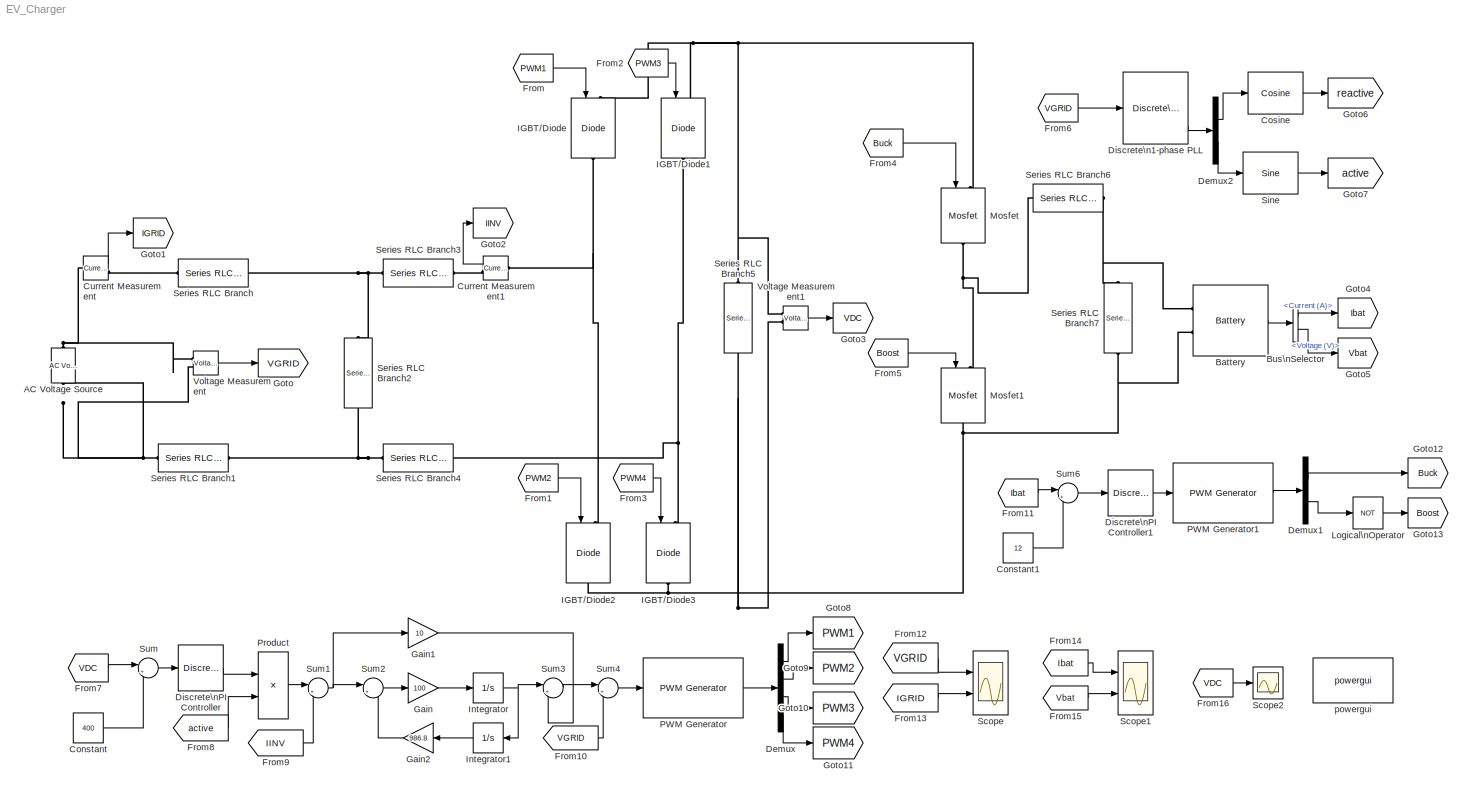
MODEL EV_Charger
KIND model
BLOCK [Reference] AC Voltage Source  REF=powerlib/Electrical\nSources/AC Voltage Source
  Amplitude = 325
  DialogController = POWERSYS.PowerSysDialog
  Frequency = 50
  FunctionWithSeparateData = off
  Measurements = None
  Phase = 0
  Ports = [0, 0, 0, 0, 0, 1, 1]
  RTWMemSecDataConstants = Inherit from model
  RTWMemSecDataInternal = Inherit from model
  RTWMemSecDataParameters = Inherit from model
  RTWMemSecFuncExecute = Inherit from model
  RTWMemSecFuncInitTerm = Inherit from model
  SampleTime = 0
  ShowPortLabels = FromPortIcon
  SourceBlock = powerlib/Electrical\nSources/AC Voltage Source
  SourceType = AC Voltage Source
  SystemSampleTime = -1
BLOCK [Reference] Battery  REF=powerlib/Electrical\nSources/Battery
  BatType = Lithium-Ion
  Dis_Char = off
  Dis_rate = 20
  FullV = 116
  FunctionWithSeparateData = off
  NomQ = 120
  NomV = 160
  Normal_OP = 98
  Ports = [0, 1, 0, 0, 0, 2]
  R = 0.033333
  RTWMemSecDataConstants = Inherit from model
  RTWMemSecDataInternal = Inherit from model
  RTWMemSecDataParameters = Inherit from model
  RTWMemSecFuncExecute = Inherit from model
  RTWMemSecFuncInitTerm = Inherit from model
  SOC = 50
  ShowDetailedParameters = off
  ShowPortLabels = FromPortIcon
  SourceBlock = powerlib/Electrical\nSources/Battery
  SourceType = Battery
  SystemSampleTime = -1
  Units = Time
  current = [1.5 3]
  expZone = [103 85]
BLOCK [BusSelector] Bus\nSelector
  OutputSignals = Current (A),Voltage (V)
  Ports = [1, 2]
BLOCK [Constant] Constant
  OutDataType = sfix(16)
  OutScaling = 2^0
  Value = 400
BLOCK [Constant] Constant1
  OutDataType = sfix(16)
  OutScaling = 2^0
  Value = 12
BLOCK [Reference] Cosine  REF=simulink/Lookup\nTables/Cosine
  Formula = cos(2*pi*u)
  FunctionWithSeparateData = off
  NumDataPoints = (2^5)+1
  OutputWordLength = 16
  Ports = [1, 1]
  RTWMemSecDataConstants = Inherit from model
  RTWMemSecDataInternal = Inherit from model
  RTWMemSecDataParameters = Inherit from model
  RTWMemSecFuncExecute = Inherit from model
  RTWMemSecFuncInitTerm = Inherit from model
  ShowPortLabels = FromPortIcon
  SourceBlock = simulink/Lookup\nTables/Cosine
  SourceType = Sine and Cosine
  SystemSampleTime = -1
BLOCK [Reference] Current Measurement  REF=powerlib/Measurements/Current Measurement
  DialogController = POWERSYS.PowerSysDialog
  FunctionWithSeparateData = off
  OutputType = Complex
  PSBequivalent = 0
  PhasorSimulation = off
  Ports = [0, 1, 0, 0, 0, 1, 1]
  RTWMemSecDataConstants = Inherit from model
  RTWMemSecDataInternal = Inherit from model
  RTWMemSecDataParameters = Inherit from model
  RTWMemSecFuncExecute = Inherit from model
  RTWMemSecFuncInitTerm = Inherit from model
  ShowPortLabels = FromPortIcon
  SourceBlock = powerlib/Measurements/Current Measurement
  SourceType = Current Measurement
  SystemSampleTime = -1
BLOCK [Reference] Current Measurement1  REF=powerlib/Measurements/Current Measurement
  DialogController = POWERSYS.PowerSysDialog
  FunctionWithSeparateData = off
  OutputType = Complex
  PSBequivalent = 0
  PhasorSimulation = off
  Ports = [0, 1, 0, 0, 0, 1, 1]
  RTWMemSecDataConstants = Inherit from model
  RTWMemSecDataInternal = Inherit from model
  RTWMemSecDataParameters = Inherit from model
  RTWMemSecFuncExecute = Inherit from model
  RTWMemSecFuncInitTerm = Inherit from model
  ShowPortLabels = FromPortIcon
  SourceBlock = powerlib/Measurements/Current Measurement
  SourceType = Current Measurement
  SystemSampleTime = -1
BLOCK [Demux] Demux
  DisplayOption = bar
  Ports = [1, 4]
BLOCK [Demux] Demux1
  DisplayOption = bar
  Outputs = 2
  Ports = [1, 2]
BLOCK [Demux] Demux2
  DisplayOption = bar
  Outputs = 2
  Ports = [1, 2]
BLOCK [Reference] Discrete\n1-phase PLL  REF=powerlib_extras/Discrete \nControl Blocks/Discrete\n1-phase PLL
  DialogController = POWERSYS.PowerSysDialog
  Fmin = 45
  FunctionWithSeparateData = off
  ParK = [180 3200]
  Par_Init = [0 50]
  Ports = [1, 3]
  RTWMemSecDataConstants = Inherit from model
  RTWMemSecDataInternal = Inherit from model
  RTWMemSecDataParameters = Inherit from model
  RTWMemSecFuncExecute = Inherit from model
  RTWMemSecFuncInitTerm = Inherit from model
  ShowPortLabels = FromPortIcon
  SourceBlock = powerlib_extras/Discrete \nControl Blocks/Discrete\n1-phase PLL
  SourceType = Discrete 1-phase PLL
  SystemSampleTime = -1
  Ts = 1e-6
BLOCK [Reference] Discrete\nPI Controller  REF=powerlib_extras/Discrete \nControl Blocks/Discrete\nPI Controller
  DialogController = POWERSYS.PowerSysDialog
  FunctionWithSeparateData = off
  Init = 0
  Ki = 10
  Kp = 1
  Par_Limits = [1e6 -1e6]
  Ports = [1, 1]
  RTWMemSecDataConstants = Inherit from model
  RTWMemSecDataInternal = Inherit from model
  RTWMemSecDataParameters = Inherit from model
  RTWMemSecFuncExecute = Inherit from model
  RTWMemSecFuncInitTerm = Inherit from model
  ShowPortLabels = FromPortIcon
  SourceBlock = powerlib_extras/Discrete \nControl Blocks/Discrete\nPI Controller
  SourceType = Discrete PI Controller
  SystemSampleTime = -1
  Ts = 50e-6
BLOCK [Reference] Discrete\nPI Controller1  REF=powerlib_extras/Discrete \nControl Blocks/Discrete\nPI Controller
  DialogController = POWERSYS.PowerSysDialog
  FunctionWithSeparateData = off
  Init = 0
  Ki = 10
  Kp = 0.005
  Par_Limits = [0.95 0]
  Ports = [1, 1]
  RTWMemSecDataConstants = Inherit from model
  RTWMemSecDataInternal = Inherit from model
  RTWMemSecDataParameters = Inherit from model
  RTWMemSecFuncExecute = Inherit from model
  RTWMemSecFuncInitTerm = Inherit from model
  ShowPortLabels = FromPortIcon
  SourceBlock = powerlib_extras/Discrete \nControl Blocks/Discrete\nPI Controller
  SourceType = Discrete PI Controller
  SystemSampleTime = -1
  Ts = 50e-6
BLOCK [From] From
  CloseFcn = tagdialog Close
  GotoTag = PWM1
BLOCK [From] From1
  CloseFcn = tagdialog Close
  GotoTag = PWM2
BLOCK [From] From10
  CloseFcn = tagdialog Close
  GotoTag = VGRID
BLOCK [From] From11
  CloseFcn = tagdialog Close
  GotoTag = Ibat
BLOCK [From] From12
  CloseFcn = tagdialog Close
  GotoTag = VGRID
BLOCK [From] From13
  CloseFcn = tagdialog Close
  GotoTag = IGRID
BLOCK [From] From14
  CloseFcn = tagdialog Close
  GotoTag = Ibat
BLOCK [From] From15
  CloseFcn = tagdialog Close
  GotoTag = Vbat
BLOCK [From] From16
  CloseFcn = tagdialog Close
  GotoTag = VDC
BLOCK [From] From2
  CloseFcn = tagdialog Close
  GotoTag = PWM3
BLOCK [From] From3
  CloseFcn = tagdialog Close
  GotoTag = PWM4
BLOCK [From] From4
  CloseFcn = tagdialog Close
  GotoTag = Buck
BLOCK [From] From5
  CloseFcn = tagdialog Close
  GotoTag = Boost
BLOCK [From] From6
  CloseFcn = tagdialog Close
  GotoTag = VGRID
BLOCK [From] From7
  CloseFcn = tagdialog Close
  GotoTag = VDC
BLOCK [From] From8
  CloseFcn = tagdialog Close
  GotoTag = active
BLOCK [From] From9
  CloseFcn = tagdialog Close
  GotoTag = IINV
BLOCK [Gain] Gain
  Gain = 100
  OutDataType = sfix(16)
  OutDataTypeMode = Inherit via internal rule
  OutScaling = 2^0
  ParameterDataType = sfix(16)
  ParameterDataTypeMode = Inherit via internal rule
  ParameterScaling = 2^0
  SaturateOnIntegerOverflow = off
BLOCK [Gain] Gain1
  Gain = 10
  OutDataType = sfix(16)
  OutDataTypeMode = Inherit via internal rule
  OutScaling = 2^0
  ParameterDataType = sfix(16)
  ParameterDataTypeMode = Inherit via internal rule
  ParameterScaling = 2^0
  SaturateOnIntegerOverflow = off
BLOCK [Gain] Gain2
  Gain = 986.8
  OutDataType = sfix(16)
  OutDataTypeMode = Inherit via internal rule
  OutScaling = 2^0
  ParameterDataType = sfix(16)
  ParameterDataTypeMode = Inherit via internal rule
  ParameterScaling = 2^0
  SaturateOnIntegerOverflow = off
BLOCK [Goto] Goto
  GotoTag = VGRID
  TagVisibility = local
BLOCK [Goto] Goto1
  GotoTag = IGRID
  TagVisibility = local
BLOCK [Goto] Goto10
  GotoTag = PWM3
  TagVisibility = local
BLOCK [Goto] Goto11
  GotoTag = PWM4
  TagVisibility = local
BLOCK [Goto] Goto12
  GotoTag = Buck
  TagVisibility = local
BLOCK [Goto] Goto13
  GotoTag = Boost
  TagVisibility = local
BLOCK [Goto] Goto2
  GotoTag = IINV
  TagVisibility = local
BLOCK [Goto] Goto3
  GotoTag = VDC
  TagVisibility = local
BLOCK [Goto] Goto4
  GotoTag = Ibat
  TagVisibility = local
BLOCK [Goto] Goto5
  GotoTag = Vbat
  TagVisibility = local
BLOCK [Goto] Goto6
  GotoTag = reactive
  TagVisibility = local
BLOCK [Goto] Goto7
  GotoTag = active
  TagVisibility = local
BLOCK [Goto] Goto8
  GotoTag = PWM1
  TagVisibility = local
BLOCK [Goto] Goto9
  GotoTag = PWM2
  TagVisibility = local
BLOCK [Reference] IGBT//Diode  REF=powerlib/Power\nElectronics/IGBT//Diode
  Cs = inf
  DialogController = POWERSYS.PowerSysDialog
  FunctionWithSeparateData = off
  Measurements = off
  Ports = [1, 0, 0, 0, 0, 1, 1]
  RTWMemSecDataConstants = Inherit from model
  RTWMemSecDataInternal = Inherit from model
  RTWMemSecDataParameters = Inherit from model
  RTWMemSecFuncExecute = Inherit from model
  RTWMemSecFuncInitTerm = Inherit from model
  Ron = 1e-3
  Rs = 1e5
  ShowPortLabels = FromPortIcon
  SourceBlock = powerlib/Power\nElectronics/IGBT//Diode
  SourceType = IGBT/Diode
  SystemSampleTime = -1
BLOCK [Reference] IGBT//Diode1  REF=powerlib/Power\nElectronics/IGBT//Diode
  Cs = inf
  DialogController = POWERSYS.PowerSysDialog
  FunctionWithSeparateData = off
  Measurements = off
  Ports = [1, 0, 0, 0, 0, 1, 1]
  RTWMemSecDataConstants = Inherit from model
  RTWMemSecDataInternal = Inherit from model
  RTWMemSecDataParameters = Inherit from model
  RTWMemSecFuncExecute = Inherit from model
  RTWMemSecFuncInitTerm = Inherit from model
  Ron = 1e-3
  Rs = 1e5
  ShowPortLabels = FromPortIcon
  SourceBlock = powerlib/Power\nElectronics/IGBT//Diode
  SourceType = IGBT/Diode
  SystemSampleTime = -1
BLOCK [Reference] IGBT//Diode2  REF=powerlib/Power\nElectronics/IGBT//Diode
  Cs = inf
  DialogController = POWERSYS.PowerSysDialog
  FunctionWithSeparateData = off
  Measurements = off
  Ports = [1, 0, 0, 0, 0, 1, 1]
  RTWMemSecDataConstants = Inherit from model
  RTWMemSecDataInternal = Inherit from model
  RTWMemSecDataParameters = Inherit from model
  RTWMemSecFuncExecute = Inherit from model
  RTWMemSecFuncInitTerm = Inherit from model
  Ron = 1e-3
  Rs = 1e5
  ShowPortLabels = FromPortIcon
  SourceBlock = powerlib/Power\nElectronics/IGBT//Diode
  SourceType = IGBT/Diode
  SystemSampleTime = -1
BLOCK [Reference] IGBT//Diode3  REF=powerlib/Power\nElectronics/IGBT//Diode
  Cs = inf
  DialogController = POWERSYS.PowerSysDialog
  FunctionWithSeparateData = off
  Measurements = off
  Ports = [1, 0, 0, 0, 0, 1, 1]
  RTWMemSecDataConstants = Inherit from model
  RTWMemSecDataInternal = Inherit from model
  RTWMemSecDataParameters = Inherit from model
  RTWMemSecFuncExecute = Inherit from model
  RTWMemSecFuncInitTerm = Inherit from model
  Ron = 1e-3
  Rs = 1e5
  ShowPortLabels = FromPortIcon
  SourceBlock = powerlib/Power\nElectronics/IGBT//Diode
  SourceType = IGBT/Diode
  SystemSampleTime = -1
BLOCK [Integrator] Integrator
  Ports = [1, 1]
BLOCK [Integrator] Integrator1
  Ports = [1, 1]
BLOCK [Logic] Logical\nOperator
  AllPortsSameDT = off
  Operator = NOT
  OutDataTypeMode = boolean
  Ports = [1, 1]
BLOCK [Reference] Mosfet  REF=powerlib/Power\nElectronics/Mosfet
  Cs = inf
  DialogController = POWERSYS.PowerSysDialog
  FunctionWithSeparateData = off
  IC = 0
  Lon = 0
  Measurements = off
  Ports = [1, 0, 0, 0, 0, 1, 1]
  RTWMemSecDataConstants = Inherit from model
  RTWMemSecDataInternal = Inherit from model
  RTWMemSecDataParameters = Inherit from model
  RTWMemSecFuncExecute = Inherit from model
  RTWMemSecFuncInitTerm = Inherit from model
  Rd = 0.01
  Ron = 0.1
  Rs = 1e5
  ShowPortLabels = FromPortIcon
  SourceBlock = powerlib/Power\nElectronics/Mosfet
  SourceType = Mosfet
  SystemSampleTime = -1
  Vfd = 0
BLOCK [Reference] Mosfet1  REF=powerlib/Power\nElectronics/Mosfet
  Cs = inf
  DialogController = POWERSYS.PowerSysDialog
  FunctionWithSeparateData = off
  IC = 0
  Lon = 0
  Measurements = off
  Ports = [1, 0, 0, 0, 0, 1, 1]
  RTWMemSecDataConstants = Inherit from model
  RTWMemSecDataInternal = Inherit from model
  RTWMemSecDataParameters = Inherit from model
  RTWMemSecFuncExecute = Inherit from model
  RTWMemSecFuncInitTerm = Inherit from model
  Rd = 0.01
  Ron = 0.1
  Rs = 1e5
  ShowPortLabels = FromPortIcon
  SourceBlock = powerlib/Power\nElectronics/Mosfet
  SourceType = Mosfet
  SystemSampleTime = -1
  Vfd = 0
BLOCK [Reference] PWM Generator  REF=powerlib_extras/Control \nBlocks/PWM Generator
  DialogController = POWERSYS.PowerSysDialog
  Fc = 10000
  Freq = 50
  FunctionWithSeparateData = off
  GeneratorMode = 2-arm  bridge (4 pulses)
  Internal = on
  Phase = 0
  Ports = [1, 1]
  RTWMemSecDataConstants = Inherit from model
  RTWMemSecDataInternal = Inherit from model
  RTWMemSecDataParameters = Inherit from model
  RTWMemSecFuncExecute = Inherit from model
  RTWMemSecFuncInitTerm = Inherit from model
  ShowPortLabels = FromPortIcon
  SourceBlock = powerlib_extras/Control \nBlocks/PWM Generator
  SourceType = PWM Generator
  SystemSampleTime = -1
  mIndex = 0.4
BLOCK [Reference] PWM Generator1  REF=powerlib_extras/Control \nBlocks/PWM Generator
  DialogController = POWERSYS.PowerSysDialog
  Fc = 10000
  Freq = 50
  FunctionWithSeparateData = off
  GeneratorMode = 1-arm  bridge (2 pulses)
  Internal = on
  Phase = 0
  Ports = [1, 1]
  RTWMemSecDataConstants = Inherit from model
  RTWMemSecDataInternal = Inherit from model
  RTWMemSecDataParameters = Inherit from model
  RTWMemSecFuncExecute = Inherit from model
  RTWMemSecFuncInitTerm = Inherit from model
  ShowPortLabels = FromPortIcon
  SourceBlock = powerlib_extras/Control \nBlocks/PWM Generator
  SourceType = PWM Generator
  SystemSampleTime = -1
  mIndex = 0.4
BLOCK [Product] Product
  CollapseMode = All dimensions
  InputSameDT = off
  OutDataType = sfix(16)
  OutDataTypeMode = Inherit via internal rule
  OutScaling = 2^0
  Ports = [2, 1]
  SaturateOnIntegerOverflow = off
BLOCK [Scope] Scope
  DataFormat = StructureWithTime
  Floating = off
  NumInputPorts = 2
  Ports = [2]
  SampleTime = 0
  YMax = 5~5
  YMin = -5~-5
  ZoomMode = xonly
BLOCK [Scope] Scope1
  DataFormat = StructureWithTime
  Floating = off
  NumInputPorts = 2
  Ports = [2]
  SampleTime = 0
  SaveName = ScopeData1
  YMax = 5~5
  YMin = -5~-5
BLOCK [Scope] Scope2
  DataFormat = StructureWithTime
  Floating = off
  NumInputPorts = 1
  Ports = [1]
  SampleTime = 0
  SaveName = ScopeData2
BLOCK [Reference] Series RLC Branch  REF=powerlib/Elements/Series RLC Branch
  BranchType = L
  Capacitance = 1e-6
  DialogController = POWERSYS.PowerSysDialog
  Inductance = 2.18e-3
  InitialCurrent = 0
  InitialVoltage = 0
  LConnTagsString = __new0
  LeftPortType = p1
  Measurements = None
  PhysicalDomain = powersysdomain
  Ports = [0, 0, 0, 0, 0, 1, 1]
  RConnTagsString = __new0
  Resistance = 1
  RightPortType = p1
  SetiL0 = off
  Setx0 = off
  SourceBlock = powerlib/Elements/Series RLC Branch
  SourceType = Series RLC Branch
  SubClassName = unknown
BLOCK [Reference] Series RLC Branch1  REF=powerlib/Elements/Series RLC Branch
  BranchType = L
  Capacitance = 1e-6
  DialogController = POWERSYS.PowerSysDialog
  Inductance = 2.18e-3
  InitialCurrent = 0
  InitialVoltage = 0
  LConnTagsString = __new0
  LeftPortType = p1
  Measurements = None
  PhysicalDomain = powersysdomain
  Ports = [0, 0, 0, 0, 0, 1, 1]
  RConnTagsString = __new0
  Resistance = 1
  RightPortType = p1
  SetiL0 = off
  Setx0 = off
  SourceBlock = powerlib/Elements/Series RLC Branch
  SourceType = Series RLC Branch
  SubClassName = unknown
BLOCK [Reference] Series RLC Branch2  REF=powerlib/Elements/Series RLC Branch
  BranchType = C
  Capacitance = 6.23e-6
  DialogController = POWERSYS.PowerSysDialog
  Inductance = 2.18e-3
  InitialCurrent = 0
  InitialVoltage = 0
  LConnTagsString = __new0
  LeftPortType = p1
  Measurements = None
  PhysicalDomain = powersysdomain
  Ports = [0, 0, 0, 0, 0, 1, 1]
  RConnTagsString = __new0
  Resistance = 1
  RightPortType = p1
  SetiL0 = off
  Setx0 = off
  SourceBlock = powerlib/Elements/Series RLC Branch
  SourceType = Series RLC Branch
  SubClassName = unknown
BLOCK [Reference] Series RLC Branch3  REF=powerlib/Elements/Series RLC Branch
  BranchType = L
  Capacitance = 1e-6
  DialogController = POWERSYS.PowerSysDialog
  Inductance = 2.03e-3
  InitialCurrent = 0
  InitialVoltage = 0
  LConnTagsString = __new0
  LeftPortType = p1
  Measurements = None
  PhysicalDomain = powersysdomain
  Ports = [0, 0, 0, 0, 0, 1, 1]
  RConnTagsString = __new0
  Resistance = 1
  RightPortType = p1
  SetiL0 = off
  Setx0 = off
  SourceBlock = powerlib/Elements/Series RLC Branch
  SourceType = Series RLC Branch
  SubClassName = unknown
BLOCK [Reference] Series RLC Branch4  REF=powerlib/Elements/Series RLC Branch
  BranchType = L
  Capacitance = 1e-6
  DialogController = POWERSYS.PowerSysDialog
  Inductance = 2.03e-3
  InitialCurrent = 0
  InitialVoltage = 0
  LConnTagsString = __new0
  LeftPortType = p1
  Measurements = None
  PhysicalDomain = powersysdomain
  Ports = [0, 0, 0, 0, 0, 1, 1]
  RConnTagsString = __new0
  Resistance = 1
  RightPortType = p1
  SetiL0 = off
  Setx0 = off
  SourceBlock = powerlib/Elements/Series RLC Branch
  SourceType = Series RLC Branch
  SubClassName = unknown
BLOCK [Reference] Series RLC Branch5  REF=powerlib/Elements/Series RLC Branch
  BranchType = RC
  Capacitance = 5600e-6
  DialogController = POWERSYS.PowerSysDialog
  Inductance = 1e-3
  InitialCurrent = 0
  InitialVoltage = 400
  LConnTagsString = __new0
  LeftPortType = p1
  Measurements = None
  PhysicalDomain = powersysdomain
  Ports = [0, 0, 0, 0, 0, 1, 1]
  RConnTagsString = __new0
  Resistance = 0.0001
  RightPortType = p1
  SetiL0 = off
  Setx0 = on
  SourceBlock = powerlib/Elements/Series RLC Branch
  SourceType = Series RLC Branch
  SubClassName = unknown
BLOCK [Reference] Series RLC Branch6  REF=powerlib/Elements/Series RLC Branch
  BranchType = L
  Capacitance = 5600e-6
  DialogController = POWERSYS.PowerSysDialog
  Inductance = 20e-3
  InitialCurrent = 0
  InitialVoltage = 400
  LConnTagsString = __new0
  LeftPortType = p1
  Measurements = None
  PhysicalDomain = powersysdomain
  Ports = [0, 0, 0, 0, 0, 1, 1]
  RConnTagsString = __new0
  Resistance = 0.0001
  RightPortType = p1
  SetiL0 = off
  Setx0 = on
  SourceBlock = powerlib/Elements/Series RLC Branch
  SourceType = Series RLC Branch
  SubClassName = unknown
BLOCK [Reference] Series RLC Branch7  REF=powerlib/Elements/Series RLC Branch
  BranchType = RC
  Capacitance = 100e-6
  DialogController = POWERSYS.PowerSysDialog
  Inductance = 20e-3
  InitialCurrent = 0
  InitialVoltage = 400
  LConnTagsString = __new0
  LeftPortType = p1
  Measurements = None
  PhysicalDomain = powersysdomain
  Ports = [0, 0, 0, 0, 0, 1, 1]
  RConnTagsString = __new0
  Resistance = 0.0001
  RightPortType = p1
  SetiL0 = off
  Setx0 = off
  SourceBlock = powerlib/Elements/Series RLC Branch
  SourceType = Series RLC Branch
  SubClassName = unknown
BLOCK [Reference] Sine  REF=simulink/Lookup\nTables/Sine
  Formula = sin(2*pi*u)
  FunctionWithSeparateData = off
  NumDataPoints = (2^5)+1
  OutputWordLength = 16
  Ports = [1, 1]
  RTWMemSecDataConstants = Inherit from model
  RTWMemSecDataInternal = Inherit from model
  RTWMemSecDataParameters = Inherit from model
  RTWMemSecFuncExecute = Inherit from model
  RTWMemSecFuncInitTerm = Inherit from model
  ShowPortLabels = FromPortIcon
  SourceBlock = simulink/Lookup\nTables/Sine
  SourceType = Sine and Cosine
  SystemSampleTime = -1
BLOCK [Sum] Sum
  CollapseMode = All dimensions
  IconShape = round
  InputSameDT = off
  Inputs = |+-
  OutDataType = sfix(16)
  OutDataTypeMode = Inherit via internal rule
  OutScaling = 2^0
  Ports = [2, 1]
  SaturateOnIntegerOverflow = off
BLOCK [Sum] Sum1
  CollapseMode = All dimensions
  IconShape = round
  InputSameDT = off
  Inputs = |+-
  OutDataType = sfix(16)
  OutDataTypeMode = Inherit via internal rule
  OutScaling = 2^0
  Ports = [2, 1]
  SaturateOnIntegerOverflow = off
BLOCK [Sum] Sum2
  CollapseMode = All dimensions
  IconShape = round
  InputSameDT = off
  Inputs = |+-
  OutDataType = sfix(16)
  OutDataTypeMode = Inherit via internal rule
  OutScaling = 2^0
  Ports = [2, 1]
  SaturateOnIntegerOverflow = off
BLOCK [Sum] Sum3
  CollapseMode = All dimensions
  IconShape = round
  InputSameDT = off
  Inputs = |++
  OutDataType = sfix(16)
  OutDataTypeMode = Inherit via internal rule
  OutScaling = 2^0
  Ports = [2, 1]
  SaturateOnIntegerOverflow = off
BLOCK [Sum] Sum4
  CollapseMode = All dimensions
  IconShape = round
  InputSameDT = off
  Inputs = |++
  OutDataType = sfix(16)
  OutDataTypeMode = Inherit via internal rule
  OutScaling = 2^0
  Ports = [2, 1]
  SaturateOnIntegerOverflow = off
BLOCK [Sum] Sum6
  CollapseMode = All dimensions
  IconShape = round
  InputSameDT = off
  Inputs = |+-
  OutDataType = sfix(16)
  OutDataTypeMode = Inherit via internal rule
  OutScaling = 2^0
  Ports = [2, 1]
  SaturateOnIntegerOverflow = off
BLOCK [Reference] Voltage Measurement  REF=powerlib/Measurements/Voltage Measurement
  DialogController = POWERSYS.PowerSysDialog
  FunctionWithSeparateData = off
  OutputType = Complex
  PSBequivalent = 0
  PhasorSimulation = off
  Ports = [0, 1, 0, 0, 0, 2]
  RTWMemSecDataConstants = Inherit from model
  RTWMemSecDataInternal = Inherit from model
  RTWMemSecDataParameters = Inherit from model
  RTWMemSecFuncExecute = Inherit from model
  RTWMemSecFuncInitTerm = Inherit from model
  ShowPortLabels = FromPortIcon
  SourceBlock = powerlib/Measurements/Voltage Measurement
  SourceType = Voltage Measurement
  SystemSampleTime = -1
BLOCK [Reference] Voltage Measurement1  REF=powerlib/Measurements/Voltage Measurement
  DialogController = POWERSYS.PowerSysDialog
  FunctionWithSeparateData = off
  OutputType = Complex
  PSBequivalent = 0
  PhasorSimulation = off
  Ports = [0, 1, 0, 0, 0, 2]
  RTWMemSecDataConstants = Inherit from model
  RTWMemSecDataInternal = Inherit from model
  RTWMemSecDataParameters = Inherit from model
  RTWMemSecFuncExecute = Inherit from model
  RTWMemSecFuncInitTerm = Inherit from model
  ShowPortLabels = FromPortIcon
  SourceBlock = powerlib/Measurements/Voltage Measurement
  SourceType = Voltage Measurement
  SystemSampleTime = -1
BLOCK [Reference] powergui  REF=powerlib/powergui
  DisplayStyle = 1
  Frange = [0:2:500]
  FreqAxis = off
  FunctionMessages = off
  FunctionWithSeparateData = off
  HookPort = off
  Interpol = off
  MaxFrequency = 1000
  Ports = []
  RTWMemSecDataConstants = Inherit from model
  RTWMemSecDataInternal = Inherit from model
  RTWMemSecDataParameters = Inherit from model
  RTWMemSecFuncExecute = Inherit from model
  RTWMemSecFuncInitTerm = Inherit from model
  RestoreLinks = warning
  RmsSteady = 1
  SPID = off
  SampleTime = 1e-6
  ShowGrid = off
  ShowPortLabels = FromPortIcon
  SourceBlock = powerlib/powergui
  SourceType = PSB option menu block
  StartTime = 0.0
  SystemSampleTime = -1
  Ts = 0
  UserData = DataTag0
  UserDataPersistent = on
  Xlog = on
  Ylog = off
  ZoomFFT = on
  cycles = 1
  display = off
  echomessages = off
  frequency = 60
  frequencyindice = 50
  frequencyindicesteady = 1
  fundamental = 60
  methode = off
  save = off
  variable = ZData
  x0status = blocks
LINE Battery:1 -> Bus\nSelector:1
LINE Bus\nSelector:1 -> Goto4:1
LINE Bus\nSelector:2 -> Goto5:1
LINE Constant1:1 -> Sum6:2
LINE Constant:1 -> Sum:2
LINE Cosine:1 -> Goto6:1
LINE Current Measurement1:1 -> Goto2:1
LINE Current Measurement:1 -> Goto1:1
LINE Demux1:1 -> Goto12:1
LINE Demux1:2 -> Logical\nOperator:1
LINE Demux2:1 -> Cosine:1
LINE Demux2:2 -> Sine:1
LINE Demux:1 -> Goto8:1
LINE Demux:2 -> Goto9:1
LINE Demux:3 -> Goto10:1
LINE Demux:4 -> Goto11:1
LINE Discrete\n1-phase PLL:3 -> Demux2:1
LINE Discrete\nPI Controller1:1 -> PWM Generator1:1
LINE Discrete\nPI Controller:1 -> Product:1
LINE From10:1 -> Sum4:2
LINE From11:1 -> Sum6:1
LINE From12:1 -> Scope:1
LINE From13:1 -> Scope:2
LINE From14:1 -> Scope1:1
LINE From15:1 -> Scope1:2
LINE From16:1 -> Scope2:1
LINE From1:1 -> IGBT//Diode2:1
LINE From2:1 -> IGBT//Diode1:1
LINE From3:1 -> IGBT//Diode3:1
LINE From4:1 -> Mosfet:1
LINE From5:1 -> Mosfet1:1
LINE From6:1 -> Discrete\n1-phase PLL:1
LINE From7:1 -> Sum:1
LINE From8:1 -> Product:2
LINE From9:1 -> Sum1:2
LINE From:1 -> IGBT//Diode:1
LINE Gain1:1 -> Sum3:2
LINE Gain2:1 -> Sum2:2
LINE Gain:1 -> Integrator:1
LINE Integrator1:1 -> Gain2:1
NET Integrator:1 -> Integrator1:1, Sum3:1
LINE Logical\nOperator:1 -> Goto13:1
LINE PWM Generator1:1 -> Demux1:1
LINE PWM Generator:1 -> Demux:1
LINE Product:1 -> Sum1:1
LINE Sine:1 -> Goto7:1
NET Sum1:1 -> Gain1:1, Sum2:1
LINE Sum2:1 -> Gain:1
LINE Sum3:1 -> Sum4:1
LINE Sum4:1 -> PWM Generator:1
LINE Sum6:1 -> Discrete\nPI Controller1:1
LINE Sum:1 -> Discrete\nPI Controller:1
LINE Voltage Measurement1:1 -> Goto3:1
LINE Voltage Measurement:1 -> Goto:1
PNET net1: AC Voltage Source:LConn1 -- Series RLC Branch1:LConn1 -- Voltage Measurement:LConn2
PNET net2: AC Voltage Source:RConn1 -- Current Measurement:LConn1 -- Voltage Measurement:LConn1
PNET net3: Battery:LConn1 -- Series RLC Branch6:LConn1 -- Series RLC Branch7:LConn1
PNET net4: Battery:LConn2 -- IGBT//Diode2:RConn1 -- IGBT//Diode3:RConn1 -- Mosfet1:RConn1 -- Series RLC Branch5:RConn1 -- Series RLC Branch7:RConn1 -- Voltage Measurement1:LConn2
PNET net5: Current Measurement1:LConn1 -- IGBT//Diode2:LConn1 -- IGBT//Diode:RConn1
PLINE Current Measurement1:RConn1 -- Series RLC Branch3:RConn1
PLINE Current Measurement:RConn1 -- Series RLC Branch:LConn1
PNET net6: IGBT//Diode1:LConn1 -- IGBT//Diode:LConn1 -- Mosfet:LConn1 -- Series RLC Branch5:LConn1 -- Voltage Measurement1:LConn1
PNET net7: IGBT//Diode1:RConn1 -- IGBT//Diode3:LConn1 -- Series RLC Branch4:RConn1
PNET net8: Mosfet1:LConn1 -- Mosfet:RConn1 -- Series RLC Branch6:RConn1
PNET net9: Series RLC Branch1:RConn1 -- Series RLC Branch2:RConn1 -- Series RLC Branch4:LConn1
PNET net10: Series RLC Branch2:LConn1 -- Series RLC Branch3:LConn1 -- Series RLC Branch:RConn1
note: NET lines group one-source signal fan-out (src -> all destinations, sorted); 1:1 wires keep LINE; PNET lines group multi-terminal physical nets as a canonical sorted terminal list (undirected conserving connections); 2-terminal nets keep the pairwise PLINE form
